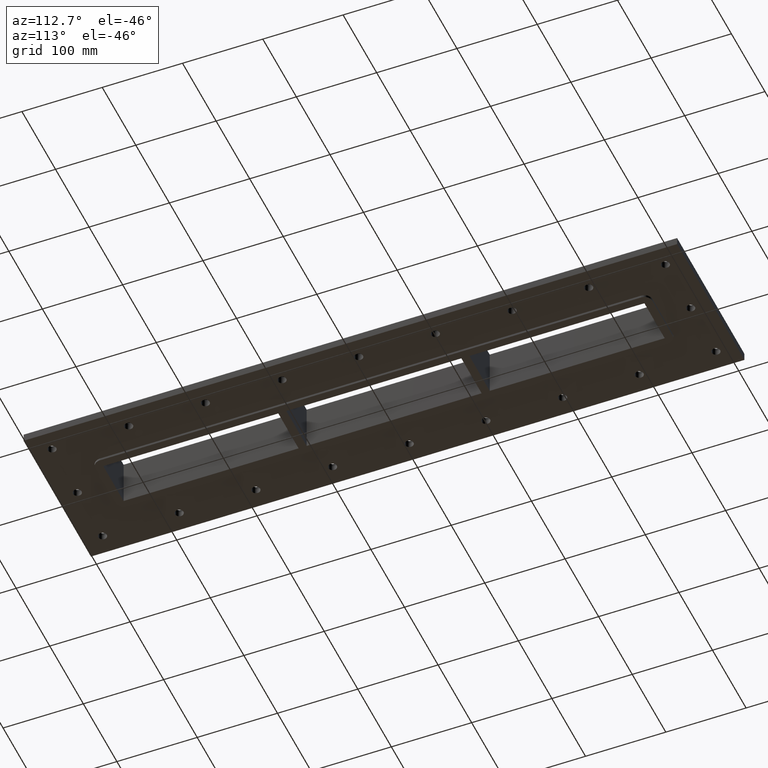
[diagram: clean part render]
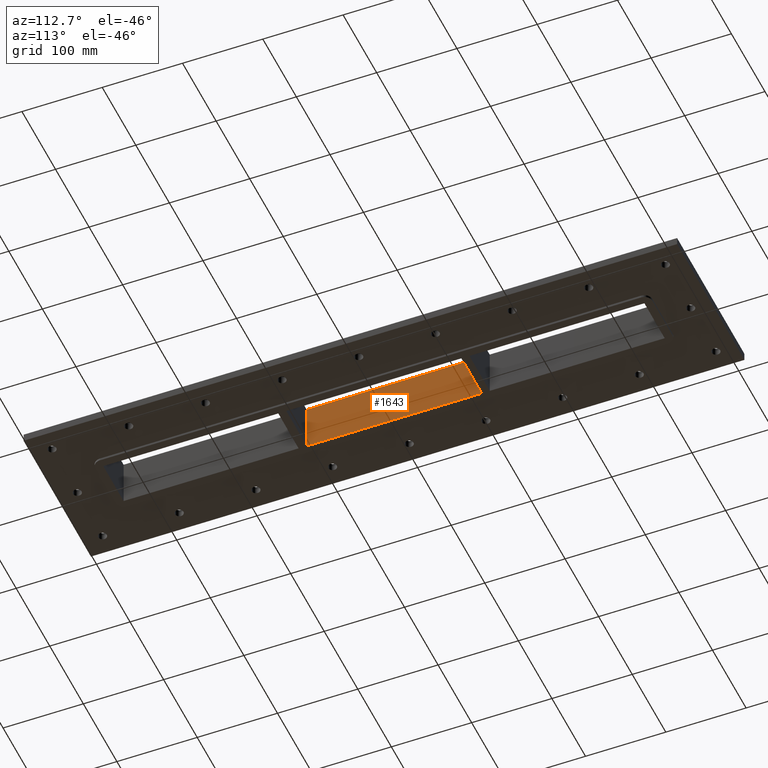
[diagram: same view with one face highlighted and labeled with its STEP entity id]
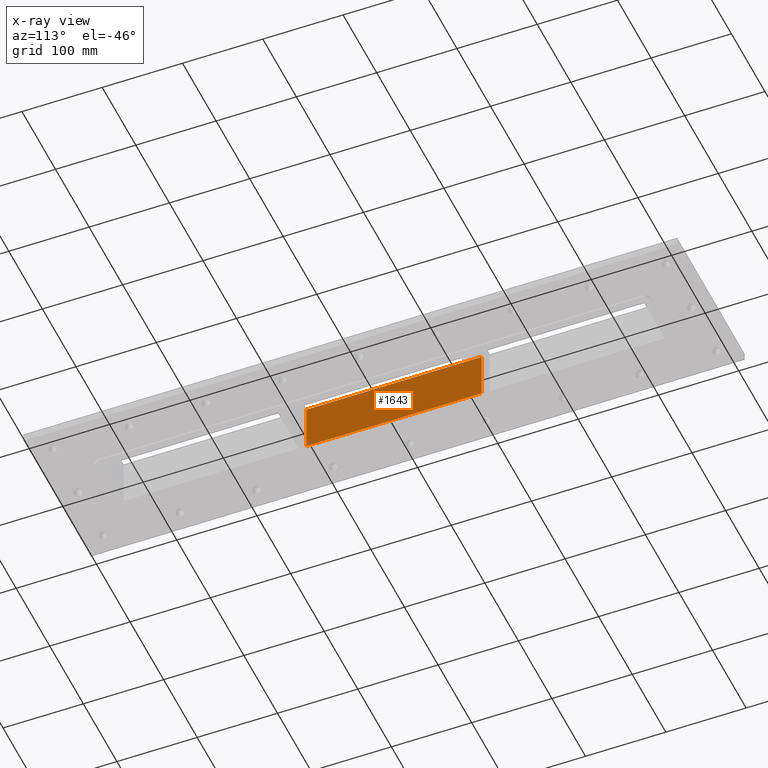
[diagram: x-ray of the same camera — body ghosted, the highlighted face saturated]
A machine part, auxiliary view. The second image highlights one B-rep face of the part: STEP entity #1643.
The next image is the same camera in x-ray: the body ghosted, the highlighted face saturated — about 0% of this face is hidden behind the body in this view.
In plain terms, the highlighted planar face has unit normal (-1, 0, 0).
Its self-contained STEP definition (entity closure, byte-faithful):
#1340=CARTESIAN_POINT('',(-30.250000000000036,108.99999999999729,-30.0));
#1341=VERTEX_POINT('',#1340);
#1342=CARTESIAN_POINT('',(-30.249999999999968,-109.00000000000273,-30.0));
#1343=VERTEX_POINT('',#1342);
#1344=CARTESIAN_POINT('',(-30.250000000000036,108.9999999999973,-30.0));
#1345=DIRECTION('',(0.0,-1.0,0.0));
#1346=VECTOR('',#1345,218.00000000000003);
#1347=LINE('',#1344,#1346);
#1348=EDGE_CURVE('',#1341,#1343,#1347,.T.);
#1613=CARTESIAN_POINT('',(-30.249999999999968,-109.00000000000273,30.0));
#1614=DIRECTION('',(-1.0,0.0,0.0));
#1615=DIRECTION('',(0.0,1.0,0.0));
#1616=AXIS2_PLACEMENT_3D('',#1613,#1614,#1615);
#1617=PLANE('',#1616);
#1618=ORIENTED_EDGE('',*,*,#1348,.F.);
#1619=CARTESIAN_POINT('',(-30.250000000000036,108.99999999999729,30.0));
#1620=VERTEX_POINT('',#1619);
#1621=CARTESIAN_POINT('',(-30.250000000000036,108.99999999999729,30.0));
#1622=DIRECTION('',(0.0,0.0,-1.0));
#1623=VECTOR('',#1622,60.0);
#1624=LINE('',#1621,#1623);
#1625=EDGE_CURVE('',#1620,#1341,#1624,.T.);
#1626=ORIENTED_EDGE('',*,*,#1625,.F.);
#1627=CARTESIAN_POINT('',(-30.249999999999968,-109.00000000000273,30.0));
#1628=VERTEX_POINT('',#1627);
#1629=CARTESIAN_POINT('',(-30.249999999999968,-109.00000000000273,30.0));
#1630=DIRECTION('',(0.0,1.0,0.0));
#1631=VECTOR('',#1630,218.00000000000003);
#1632=LINE('',#1629,#1631);
#1633=EDGE_CURVE('',#1628,#1620,#1632,.T.);
#1634=ORIENTED_EDGE('',*,*,#1633,.F.);
#1635=CARTESIAN_POINT('',(-30.249999999999968,-109.00000000000273,30.0));
#1636=DIRECTION('',(0.0,0.0,-1.0));
#1637=VECTOR('',#1636,60.0);
#1638=LINE('',#1635,#1637);
#1639=EDGE_CURVE('',#1628,#1343,#1638,.T.);
#1640=ORIENTED_EDGE('',*,*,#1639,.T.);
#1641=EDGE_LOOP('',(#1618,#1626,#1634,#1640));
#1642=FACE_OUTER_BOUND('',#1641,.T.);
#1643=ADVANCED_FACE('',(#1642),#1617,.F.);